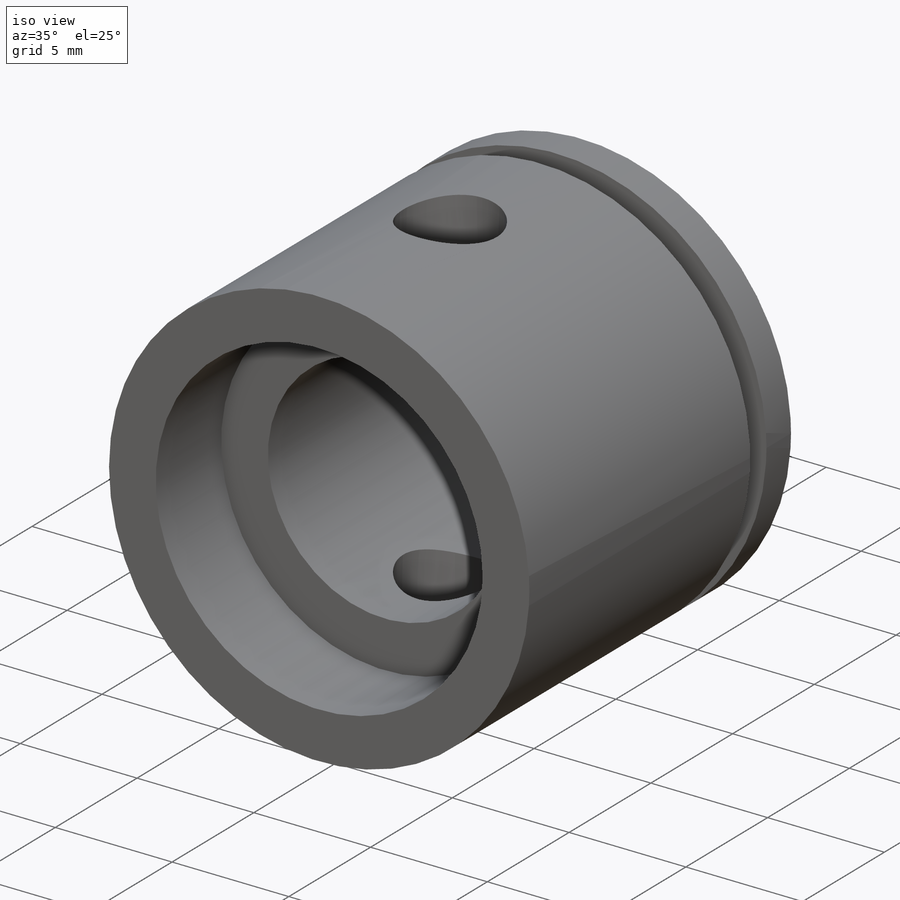
[diagram: iso view]
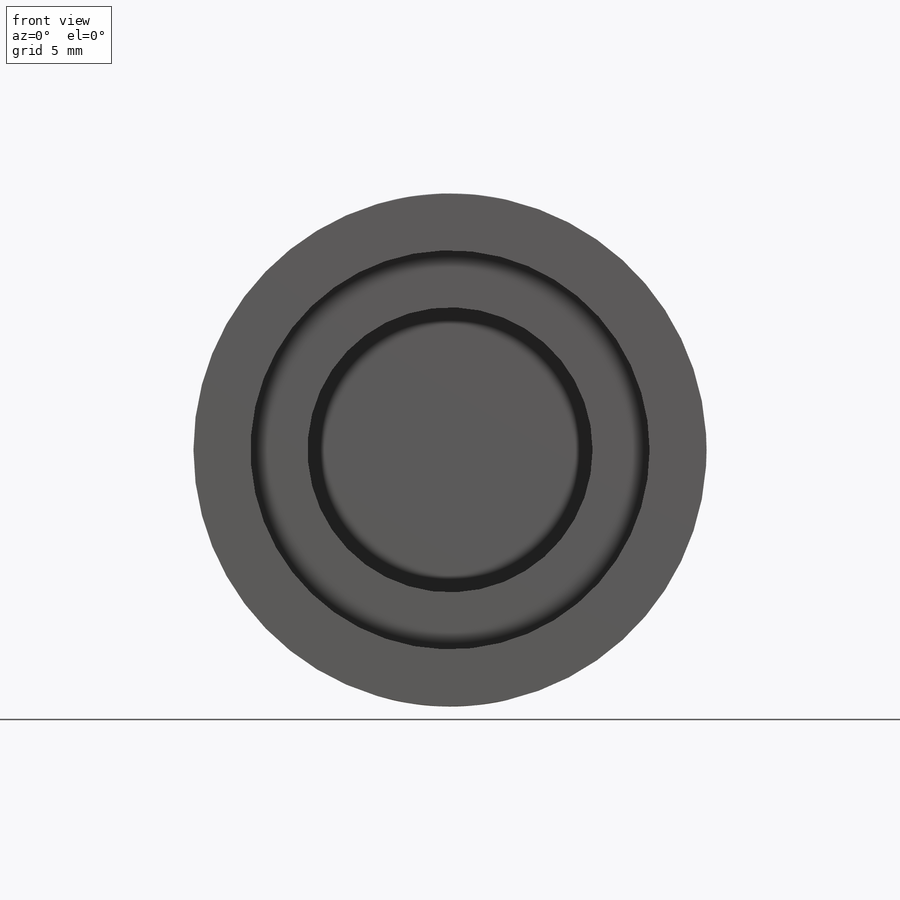
[diagram: front view]
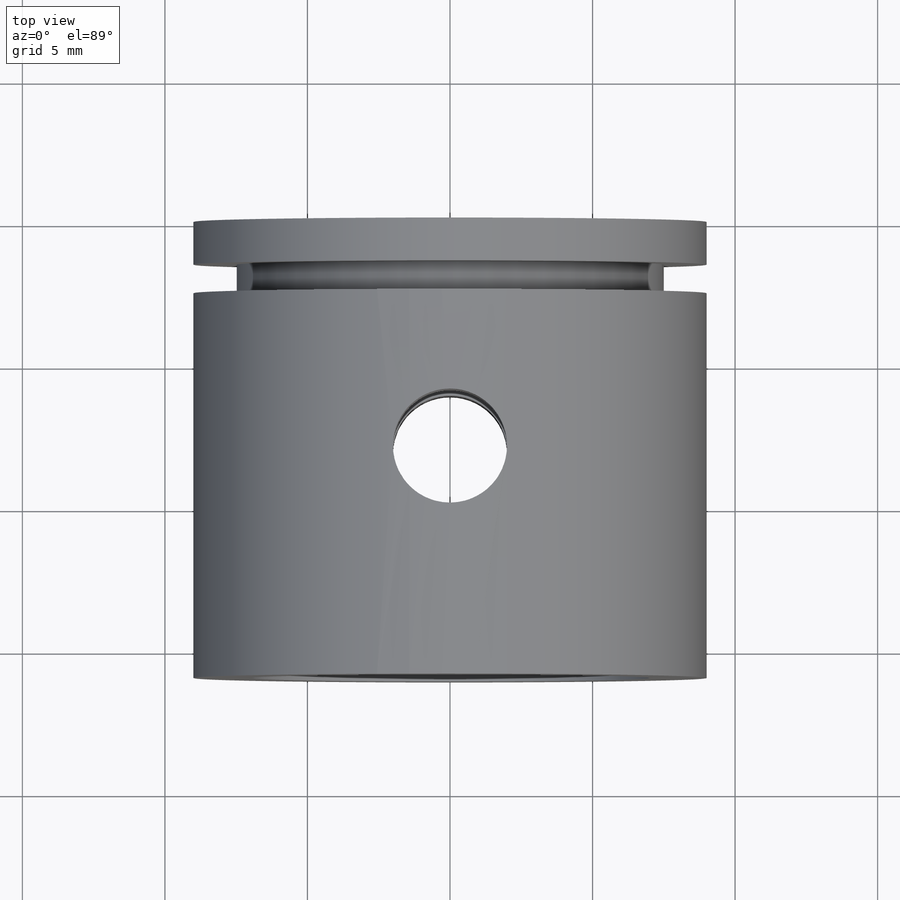
[diagram: top view]
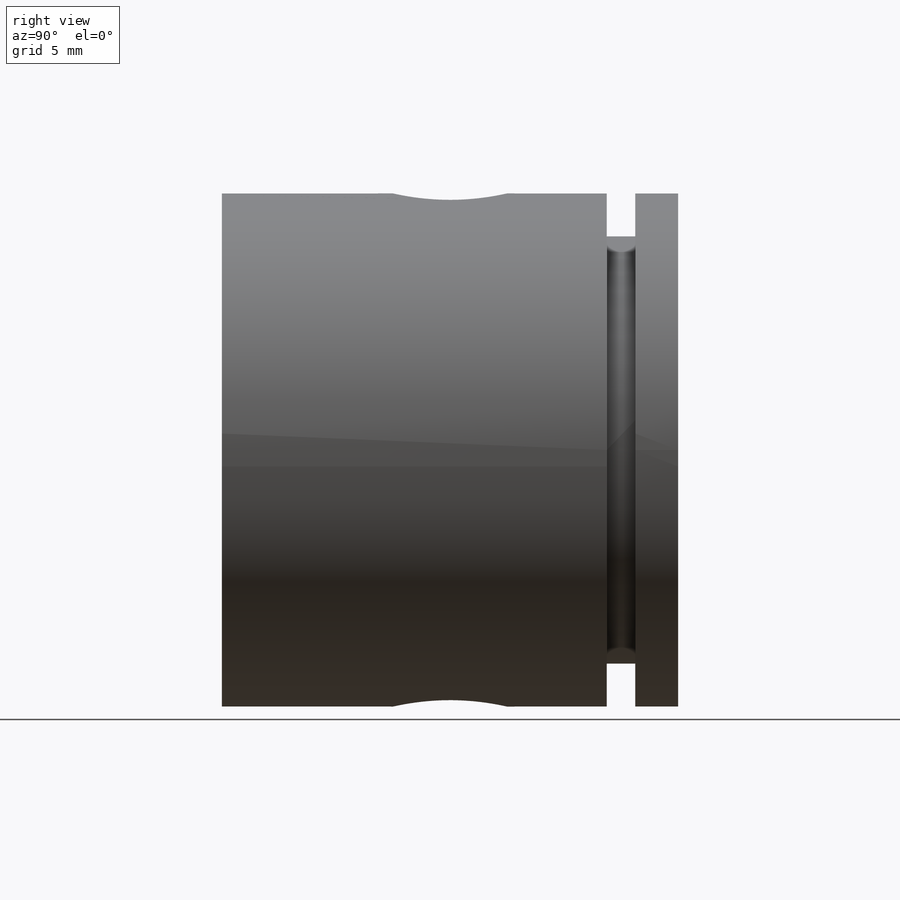
[diagram: right view]
SOLIDWORKS PART (.sldprt)
format: sldprt  version: not decoded by parser v0  size: 213,504 bytes
history: native  units: mm
features: sketch x5, cut_extrude x2, material x1, extrude x1, hole x1, plane x1 (+12 scaffold rows collapsed)
feature tree (23):
  scaffold x12  (default folders/planes/origin — collapsed)
  material  "Material <not specified>"
  sketch  "Sketch1"  dims[D1=18.0mm]
  extrude  "Boss-Extrude1"  Depth=16mm
  hole  "CBORE for M14 Hex Head Bolt1"  Diameter=10mm Depth=14mm
  sketch  "Sketch3"
  sketch  "Sketch2"  dims[hole-wizard template sketch: 28 standard entries collapsed; hole parameters kept: c8.Hole Dia.=10.0mm c8.Hole Depth=14.0mm c8.C'Bore Dia.=14.0mm c8.C'Bore Depth=4.0mm c8.D5=~14.816244mm c8.Drill Angle=180.0deg]
  plane  "Plane1"  Offset=13.5mm
  sketch  "Sketch4"  dims[D1=15.0mm]
  cut_extrude  "Cut-Extrude1"  Depth=1mm
  sketch  "Sketch5"  dims[D2=4.0mm D1=8.0mm]
  cut_extrude  "Cut-Extrude2"  Depth=31mm
decode coverage: 8 of 9 modeling features carry decoded parameters
note: ~ marks probable driven/reference dimensions
note: suppression state not decoded; provenance and decode notes live in map.json
